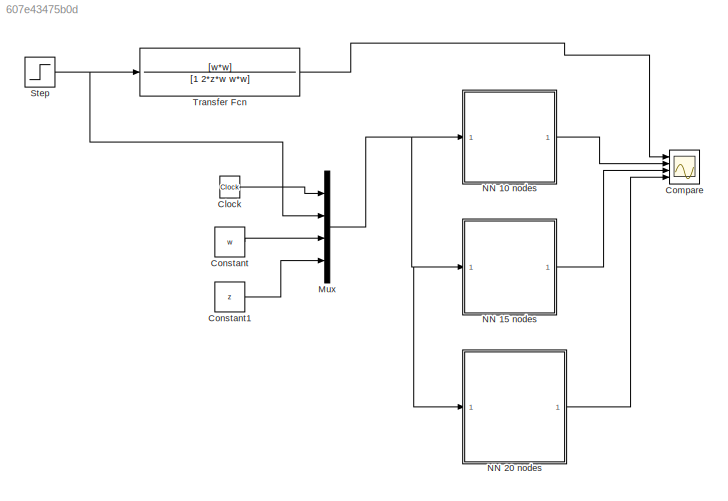
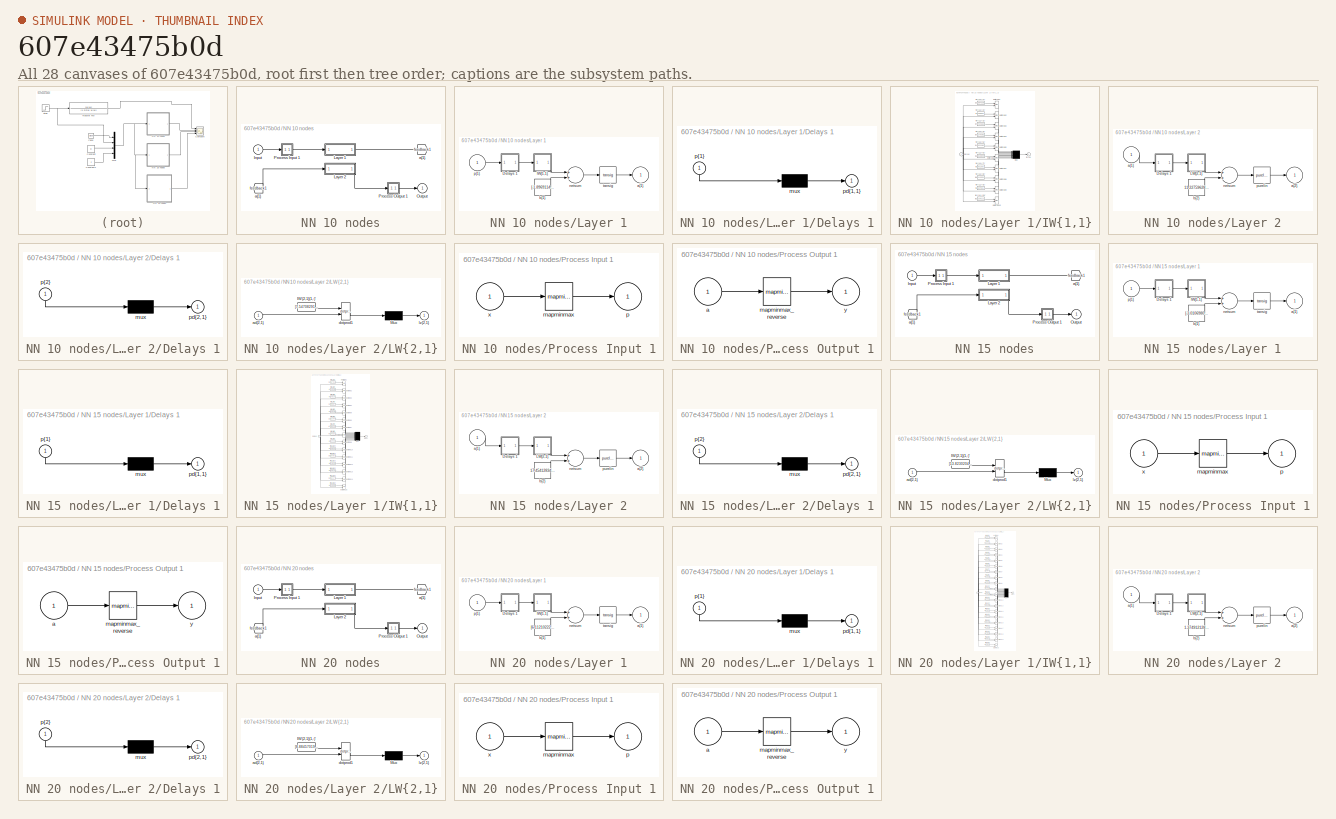
[diagram: thumbnail index - all 28 canvases of the model, root first then tree order]
MODEL slx_607e43475b0d
KIND model
CONFIG AbsTol = auto
CONFIG EnableMultiTasking = off
CONFIG FixedStep = 0.01
CONFIG MaxStep = auto
CONFIG MinStep = auto
CONFIG RelTol = 1e-3
CONFIG SampleTimeConstraint = Unconstrained
CONFIG Solver = FixedStepAuto
CONFIG SolverName = FixedStepAuto
CONFIG StartTime = 0.0
CONFIG StopTime = 10.0
BLOCK [Clock] Clock
BLOCK [Scope] Compare
  NumInputPorts = 4
  Ports = [4]
  ScopeSpecificationString = Simulink.scopes.TimeScopeBlockCfg('CurrentConfiguration', extmgr.ConfigurationSet(extmgr.Configuration('Core','General UI',true),extmgr.Configuration('Core','Source UI',true),extmgr.Configuration('Sources','WiredSimulink',true),extmgr.Configuration('Visuals','Time Domain',true,'SerializedDisplays',{struct('MinYLimReal','-0.19313','MaxYLimReal','1.29629','YLabelReal','','MinYLimMag','0.00000','MaxY...<+1372ch>
BLOCK [Constant] Constant
  Value = w
BLOCK [Constant] Constant1
  Value = z
BLOCK [Mux] Mux
  DisplayOption = bar
  Ports = [4, 1]
BLOCK [SubSystem] NN 10 nodes
  Ports = [1, 1]
  RequestExecContextInheritance = off
  Variant = off
BLOCK [From] NN 10 nodes/ a{1} 
  GotoTag = feedback1
BLOCK [Inport] NN 10 nodes/Input
  IconDisplay = Port number
  PortDimensions = 4
BLOCK [SubSystem] NN 10 nodes/Layer 1
  Ports = [1, 1]
  RequestExecContextInheritance = off
  Variant = off
BLOCK [SubSystem] NN 10 nodes/Layer 1/Delays 1
  Ports = [1, 1]
  RequestExecContextInheritance = off
  Variant = off
BLOCK [Mux] NN 10 nodes/Layer 1/Delays 1/mux
  Inputs = 1
  Ports = [1, 1]
BLOCK [Outport] NN 10 nodes/Layer 1/Delays 1/pd{1,1}
  IconDisplay = Port number
BLOCK [Inport] NN 10 nodes/Layer 1/Delays 1/p{1}
  IconDisplay = Port number
  PortDimensions = 4
BLOCK [SubSystem] NN 10 nodes/Layer 1/IW{1,1}
  Ports = [1, 1]
  RequestExecContextInheritance = off
  Variant = off
BLOCK [Constant] NN 10 nodes/Layer 1/IW{1,1}/IW{1,1}(1,:)'
  Value = [1.9185433832787973;3.3173700128669261;2.4682724581800644;-0.20229762015980254]
BLOCK [Constant] NN 10 nodes/Layer 1/IW{1,1}/IW{1,1}(10,:)'
  Value = [9.3610611228344762;3.1312193322700579;-1.6979437161740925;1.86318595788624]
BLOCK [Constant] NN 10 nodes/Layer 1/IW{1,1}/IW{1,1}(2,:)'
  Value = [-1.7438809418963066;4.2427101116629;-2.4586036192693062;0.046644484786952593]
BLOCK [Constant] NN 10 nodes/Layer 1/IW{1,1}/IW{1,1}(3,:)'
  Value = [3.7341065278569623;3.332555606751709;-0.58328050308780199;0.085751644183435241]
BLOCK [Constant] NN 10 nodes/Layer 1/IW{1,1}/IW{1,1}(4,:)'
  Value = [0.42176382828753656;2.5529666589430926;-12.29804493722396;-0.26766196776032319]
BLOCK [Constant] NN 10 nodes/Layer 1/IW{1,1}/IW{1,1}(5,:)'
  Value = [1.4662338319497805;-7.8036792245139148;-2.5809332820737412;-0.54757653586608357]
BLOCK [Constant] NN 10 nodes/Layer 1/IW{1,1}/IW{1,1}(6,:)'
  Value = [1.5801880067597285;-2.3888841287655458;2.4289911320613817;0.045102788418519578]
BLOCK [Constant] NN 10 nodes/Layer 1/IW{1,1}/IW{1,1}(7,:)'
  Value = [-6.0601393473875778;-1.8712723280086134;-1.2615842720395891;0.06144223575888013]
BLOCK [Constant] NN 10 nodes/Layer 1/IW{1,1}/IW{1,1}(8,:)'
  Value = [9.8611555194809473;3.049663648955744;-1.6407652855003632;1.8019412687678915]
BLOCK [Constant] NN 10 nodes/Layer 1/IW{1,1}/IW{1,1}(9,:)'
  Value = [-6.2167651875167644;3.3431191318571236;-1.2037116092171121;0.00027859896473940535]
BLOCK [Mux] NN 10 nodes/Layer 1/IW{1,1}/Mux
  Inputs = 10
  Ports = [10, 1]
BLOCK [Reference] NN 10 nodes/Layer 1/IW{1,1}/dotprod1  REF=neural/Weight Functions/dotprod
  Ports = [2, 1]
  SourceBlock = neural/Weight Functions/dotprod
  SourceProductBaseCode = NN
  SourceProductName = Neural Network Toolbox
  SourceType = DOTPROD
BLOCK [Reference] NN 10 nodes/Layer 1/IW{1,1}/dotprod10  REF=neural/Weight Functions/dotprod
  Ports = [2, 1]
  SourceBlock = neural/Weight Functions/dotprod
  SourceProductBaseCode = NN
  SourceProductName = Neural Network Toolbox
  SourceType = DOTPROD
BLOCK [Reference] NN 10 nodes/Layer 1/IW{1,1}/dotprod2  REF=neural/Weight Functions/dotprod
  Ports = [2, 1]
  SourceBlock = neural/Weight Functions/dotprod
  SourceProductBaseCode = NN
  SourceProductName = Neural Network Toolbox
  SourceType = DOTPROD
BLOCK [Reference] NN 10 nodes/Layer 1/IW{1,1}/dotprod3  REF=neural/Weight Functions/dotprod
  Ports = [2, 1]
  SourceBlock = neural/Weight Functions/dotprod
  SourceProductBaseCode = NN
  SourceProductName = Neural Network Toolbox
  SourceType = DOTPROD
BLOCK [Reference] NN 10 nodes/Layer 1/IW{1,1}/dotprod4  REF=neural/Weight Functions/dotprod
  Ports = [2, 1]
  SourceBlock = neural/Weight Functions/dotprod
  SourceProductBaseCode = NN
  SourceProductName = Neural Network Toolbox
  SourceType = DOTPROD
BLOCK [Reference] NN 10 nodes/Layer 1/IW{1,1}/dotprod5  REF=neural/Weight Functions/dotprod
  Ports = [2, 1]
  SourceBlock = neural/Weight Functions/dotprod
  SourceProductBaseCode = NN
  SourceProductName = Neural Network Toolbox
  SourceType = DOTPROD
BLOCK [Reference] NN 10 nodes/Layer 1/IW{1,1}/dotprod6  REF=neural/Weight Functions/dotprod
  Ports = [2, 1]
  SourceBlock = neural/Weight Functions/dotprod
  SourceProductBaseCode = NN
  SourceProductName = Neural Network Toolbox
  SourceType = DOTPROD
BLOCK [Reference] NN 10 nodes/Layer 1/IW{1,1}/dotprod7  REF=neural/Weight Functions/dotprod
  Ports = [2, 1]
  SourceBlock = neural/Weight Functions/dotprod
  SourceProductBaseCode = NN
  SourceProductName = Neural Network Toolbox
  SourceType = DOTPROD
BLOCK [Reference] NN 10 nodes/Layer 1/IW{1,1}/dotprod8  REF=neural/Weight Functions/dotprod
  Ports = [2, 1]
  SourceBlock = neural/Weight Functions/dotprod
  SourceProductBaseCode = NN
  SourceProductName = Neural Network Toolbox
  SourceType = DOTPROD
BLOCK [Reference] NN 10 nodes/Layer 1/IW{1,1}/dotprod9  REF=neural/Weight Functions/dotprod
  Ports = [2, 1]
  SourceBlock = neural/Weight Functions/dotprod
  SourceProductBaseCode = NN
  SourceProductName = Neural Network Toolbox
  SourceType = DOTPROD
BLOCK [Outport] NN 10 nodes/Layer 1/IW{1,1}/iz{1,1}
  IconDisplay = Port number
BLOCK [Inport] NN 10 nodes/Layer 1/IW{1,1}/pd{1,1}
  IconDisplay = Port number
  PortDimensions = 4
BLOCK [Outport] NN 10 nodes/Layer 1/a{1}
  IconDisplay = Port number
  InitialOutput = [0;0;0;0;0;0;0;0;0;0]
BLOCK [Constant] NN 10 nodes/Layer 1/b{1}
  Value = [-1.8969114518142287;-5.5347021458910861;-0.23725296557812867;-5.6693746096259385;1.7795127847458978;3.6072536956119969;-0.86535525560730853;6.441479356336445;-6.0313773870575424;6.0504960039427829]
BLOCK [Sum] NN 10 nodes/Layer 1/netsum
  Inputs = 2
  Ports = [2, 1]
BLOCK [Inport] NN 10 nodes/Layer 1/p{1}
  IconDisplay = Port number
  PortDimensions = 4
BLOCK [Reference] NN 10 nodes/Layer 1/tansig  REF=neural/Transfer Functions/tansig
  Ports = [1, 1]
  SourceBlock = neural/Transfer Functions/tansig
  SourceProductBaseCode = NN
  SourceProductName = Neural Network Toolbox
  SourceType = TANSIG
BLOCK [SubSystem] NN 10 nodes/Layer 2
  Ports = [1, 1]
  RequestExecContextInheritance = off
  Variant = off
BLOCK [SubSystem] NN 10 nodes/Layer 2/Delays 1
  Ports = [1, 1]
  RequestExecContextInheritance = off
  Variant = off
BLOCK [Mux] NN 10 nodes/Layer 2/Delays 1/mux
  Inputs = 1
  Ports = [1, 1]
BLOCK [Outport] NN 10 nodes/Layer 2/Delays 1/pd{2,1}
  IconDisplay = Port number
BLOCK [Inport] NN 10 nodes/Layer 2/Delays 1/p{2}
  IconDisplay = Port number
  PortDimensions = 10
BLOCK [SubSystem] NN 10 nodes/Layer 2/LW{2,1}
  Ports = [1, 1]
  RequestExecContextInheritance = off
  Variant = off
BLOCK [Constant] NN 10 nodes/Layer 2/LW{2,1}/IW{2,1}(1,:)'
  Value = [7.5470829198606193;17.97931140673456;0.83778853620659033;0.12308884845091767;12.427538647284898;10.821060689712372;-4.5890978940173976;4.4868871934669592;4.2881423585224026;-4.3726674009690711]
BLOCK [Mux] NN 10 nodes/Layer 2/LW{2,1}/Mux
  Inputs = 1
  Ports = [1, 1]
BLOCK [Inport] NN 10 nodes/Layer 2/LW{2,1}/ad{2,1}
  IconDisplay = Port number
  PortDimensions = 10
BLOCK [Reference] NN 10 nodes/Layer 2/LW{2,1}/dotprod1  REF=neural/Weight Functions/dotprod
  Ports = [2, 1]
  SourceBlock = neural/Weight Functions/dotprod
  SourceProductBaseCode = NN
  SourceProductName = Neural Network Toolbox
  SourceType = DOTPROD
BLOCK [Outport] NN 10 nodes/Layer 2/LW{2,1}/lz{2,1}
  IconDisplay = Port number
BLOCK [Inport] NN 10 nodes/Layer 2/a{1} 
  IconDisplay = Port number
  PortDimensions = 10
BLOCK [Outport] NN 10 nodes/Layer 2/a{2}
  IconDisplay = Port number
  InitialOutput = 0
BLOCK [Constant] NN 10 nodes/Layer 2/b{2}
  Value = 11.227596280265539
BLOCK [Sum] NN 10 nodes/Layer 2/netsum
  Inputs = 2
  Ports = [2, 1]
BLOCK [Reference] NN 10 nodes/Layer 2/purelin  REF=neural/Transfer Functions/purelin
  Ports = [1, 1]
  SourceBlock = neural/Transfer Functions/purelin
  SourceProductBaseCode = NN
  SourceProductName = Neural Network Toolbox
  SourceType = PURELIN
BLOCK [Outport] NN 10 nodes/Output
  IconDisplay = Port number
  InitialOutput = 0
BLOCK [SubSystem] NN 10 nodes/Process Input 1
  Ports = [1, 1]
  RequestExecContextInheritance = off
  Variant = off
BLOCK [Reference] NN 10 nodes/Process Input 1/mapminmax  REF=neural/Processing Functions/mapminmax
  Ports = [1, 1]
  SourceBlock = neural/Processing Functions/mapminmax
  SourceProductBaseCode = NN
  SourceProductName = Neural Network Toolbox
  SourceType = MAPMINMAX Preprocess
BLOCK [Outport] NN 10 nodes/Process Input 1/p
  IconDisplay = Port number
  PortDimensions = 4
BLOCK [Inport] NN 10 nodes/Process Input 1/x
  IconDisplay = Port number
  PortDimensions = 4
BLOCK [SubSystem] NN 10 nodes/Process Output 1
  Ports = [1, 1]
  RequestExecContextInheritance = off
  Variant = off
BLOCK [Inport] NN 10 nodes/Process Output 1/a
  IconDisplay = Port number
  PortDimensions = 1
BLOCK [Reference] NN 10 nodes/Process Output 1/mapminmax_reverse  REF=neural/Processing Functions/mapminmax_reverse
  Ports = [1, 1]
  SourceBlock = neural/Processing Functions/mapminmax_reverse
  SourceProductBaseCode = NN
  SourceProductName = Neural Network Toolbox
  SourceType = MAPMINMAX Reverse Process
BLOCK [Outport] NN 10 nodes/Process Output 1/y
  IconDisplay = Port number
  PortDimensions = 1
BLOCK [Goto] NN 10 nodes/a{1}
  GotoTag = feedback1
BLOCK [SubSystem] NN 15 nodes
  Ports = [1, 1]
  RequestExecContextInheritance = off
  Variant = off
BLOCK [From] NN 15 nodes/ a{1} 
  GotoTag = feedback1
BLOCK [Inport] NN 15 nodes/Input
  IconDisplay = Port number
  PortDimensions = 4
BLOCK [SubSystem] NN 15 nodes/Layer 1
  Ports = [1, 1]
  RequestExecContextInheritance = off
  Variant = off
BLOCK [SubSystem] NN 15 nodes/Layer 1/Delays 1
  Ports = [1, 1]
  RequestExecContextInheritance = off
  Variant = off
BLOCK [Mux] NN 15 nodes/Layer 1/Delays 1/mux
  Inputs = 1
  Ports = [1, 1]
BLOCK [Outport] NN 15 nodes/Layer 1/Delays 1/pd{1,1}
  IconDisplay = Port number
BLOCK [Inport] NN 15 nodes/Layer 1/Delays 1/p{1}
  IconDisplay = Port number
  PortDimensions = 4
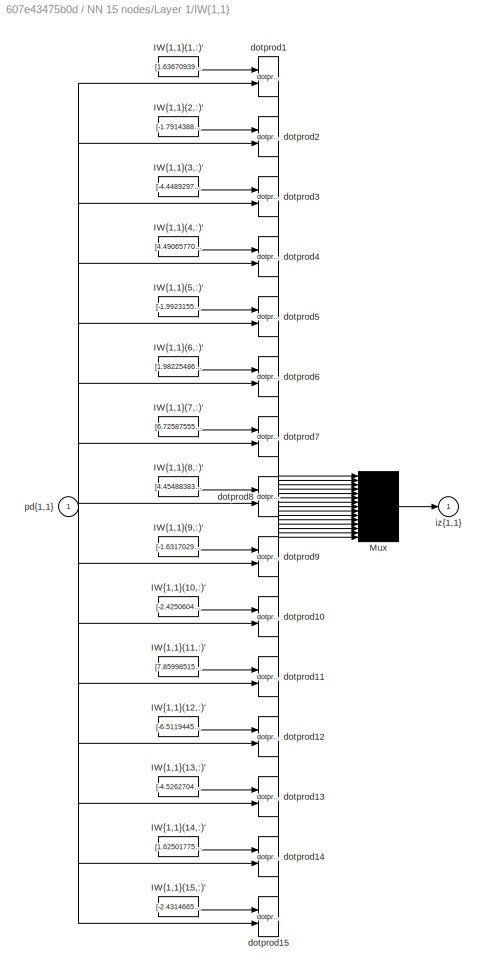
BLOCK [SubSystem] NN 15 nodes/Layer 1/IW{1,1}
  Ports = [1, 1]
  RequestExecContextInheritance = off
  Variant = off
BLOCK [Constant] NN 15 nodes/Layer 1/IW{1,1}/IW{1,1}(1,:)'
  Value = [1.6367093967858795;4.7671244247278839;3.6694473521932967;-0.090835932073285719]
BLOCK [Constant] NN 15 nodes/Layer 1/IW{1,1}/IW{1,1}(10,:)'
  Value = [-2.4250604188863543;-3.2322836668932147;-2.2178351826044875;-0.35950824960210315]
BLOCK [Constant] NN 15 nodes/Layer 1/IW{1,1}/IW{1,1}(11,:)'
  Value = [7.859985151831471;4.075395387352267;0.20632427552164345;0.1333083015870295]
BLOCK [Constant] NN 15 nodes/Layer 1/IW{1,1}/IW{1,1}(12,:)'
  Value = [-6.5119445883315485;-3.3250628916996141;0.18997564626024152;-0.16703798102529169]
BLOCK [Constant] NN 15 nodes/Layer 1/IW{1,1}/IW{1,1}(13,:)'
  Value = [-4.5262704890445136;-3.4488161706403249;0.61016538680418586;-0.19865226564173494]
BLOCK [Constant] NN 15 nodes/Layer 1/IW{1,1}/IW{1,1}(14,:)'
  Value = [1.6250177546797591;-4.5160854403117421;3.5206146538859393;-0.18942310213385169]
BLOCK [Constant] NN 15 nodes/Layer 1/IW{1,1}/IW{1,1}(15,:)'
  Value = [-2.431466583005522;-3.2894868442488807;-2.2432242812651326;-0.32170777674257961]
BLOCK [Constant] NN 15 nodes/Layer 1/IW{1,1}/IW{1,1}(2,:)'
  Value = [-1.7914388164855128;2.3269927124328493;2.6395293624925493;-0.21594884850701174]
BLOCK [Constant] NN 15 nodes/Layer 1/IW{1,1}/IW{1,1}(3,:)'
  Value = [-4.4489297840655517;-1.5240659164515193;-1.2221749395630155;-0.080297837161326796]
BLOCK [Constant] NN 15 nodes/Layer 1/IW{1,1}/IW{1,1}(4,:)'
  Value = [4.4906577069397402;2.085707443106906;1.356141370290719;-0.084714941640286007]
BLOCK [Constant] NN 15 nodes/Layer 1/IW{1,1}/IW{1,1}(5,:)'
  Value = [-1.9923155598440656;-2.9939743639489698;0.82477655267443395;-0.11315537059465612]
BLOCK [Constant] NN 15 nodes/Layer 1/IW{1,1}/IW{1,1}(6,:)'
  Value = [1.9822548652313754;3.6455433662840107;-0.92565706213667709;0.14114528678395794]
BLOCK [Constant] NN 15 nodes/Layer 1/IW{1,1}/IW{1,1}(7,:)'
  Value = [6.7258755529429619;2.0652168344548136;5.3349932528868287;-0.62168135458888873]
BLOCK [Constant] NN 15 nodes/Layer 1/IW{1,1}/IW{1,1}(8,:)'
  Value = [4.4548838343382275;1.7130216933609064;1.2841274006452714;0.0029059097410909919]
BLOCK [Constant] NN 15 nodes/Layer 1/IW{1,1}/IW{1,1}(9,:)'
  Value = [-1.6317029364170346;-4.3770680490881961;-3.3632414160342043;0.28821957456768521]
BLOCK [Mux] NN 15 nodes/Layer 1/IW{1,1}/Mux
  Inputs = 15
  Ports = [15, 1]
BLOCK [Reference] NN 15 nodes/Layer 1/IW{1,1}/dotprod1  REF=neural/Weight Functions/dotprod
  Ports = [2, 1]
  SourceBlock = neural/Weight Functions/dotprod
  SourceProductBaseCode = NN
  SourceProductName = Neural Network Toolbox
  SourceType = DOTPROD
BLOCK [Reference] NN 15 nodes/Layer 1/IW{1,1}/dotprod10  REF=neural/Weight Functions/dotprod
  Ports = [2, 1]
  SourceBlock = neural/Weight Functions/dotprod
  SourceProductBaseCode = NN
  SourceProductName = Neural Network Toolbox
  SourceType = DOTPROD
BLOCK [Reference] NN 15 nodes/Layer 1/IW{1,1}/dotprod11  REF=neural/Weight Functions/dotprod
  Ports = [2, 1]
  SourceBlock = neural/Weight Functions/dotprod
  SourceProductBaseCode = NN
  SourceProductName = Neural Network Toolbox
  SourceType = DOTPROD
BLOCK [Reference] NN 15 nodes/Layer 1/IW{1,1}/dotprod12  REF=neural/Weight Functions/dotprod
  Ports = [2, 1]
  SourceBlock = neural/Weight Functions/dotprod
  SourceProductBaseCode = NN
  SourceProductName = Neural Network Toolbox
  SourceType = DOTPROD
BLOCK [Reference] NN 15 nodes/Layer 1/IW{1,1}/dotprod13  REF=neural/Weight Functions/dotprod
  Ports = [2, 1]
  SourceBlock = neural/Weight Functions/dotprod
  SourceProductBaseCode = NN
  SourceProductName = Neural Network Toolbox
  SourceType = DOTPROD
BLOCK [Reference] NN 15 nodes/Layer 1/IW{1,1}/dotprod14  REF=neural/Weight Functions/dotprod
  Ports = [2, 1]
  SourceBlock = neural/Weight Functions/dotprod
  SourceProductBaseCode = NN
  SourceProductName = Neural Network Toolbox
  SourceType = DOTPROD
BLOCK [Reference] NN 15 nodes/Layer 1/IW{1,1}/dotprod15  REF=neural/Weight Functions/dotprod
  Ports = [2, 1]
  SourceBlock = neural/Weight Functions/dotprod
  SourceProductBaseCode = NN
  SourceProductName = Neural Network Toolbox
  SourceType = DOTPROD
BLOCK [Reference] NN 15 nodes/Layer 1/IW{1,1}/dotprod2  REF=neural/Weight Functions/dotprod
  Ports = [2, 1]
  SourceBlock = neural/Weight Functions/dotprod
  SourceProductBaseCode = NN
  SourceProductName = Neural Network Toolbox
  SourceType = DOTPROD
BLOCK [Reference] NN 15 nodes/Layer 1/IW{1,1}/dotprod3  REF=neural/Weight Functions/dotprod
  Ports = [2, 1]
  SourceBlock = neural/Weight Functions/dotprod
  SourceProductBaseCode = NN
  SourceProductName = Neural Network Toolbox
  SourceType = DOTPROD
BLOCK [Reference] NN 15 nodes/Layer 1/IW{1,1}/dotprod4  REF=neural/Weight Functions/dotprod
  Ports = [2, 1]
  SourceBlock = neural/Weight Functions/dotprod
  SourceProductBaseCode = NN
  SourceProductName = Neural Network Toolbox
  SourceType = DOTPROD
BLOCK [Reference] NN 15 nodes/Layer 1/IW{1,1}/dotprod5  REF=neural/Weight Functions/dotprod
  Ports = [2, 1]
  SourceBlock = neural/Weight Functions/dotprod
  SourceProductBaseCode = NN
  SourceProductName = Neural Network Toolbox
  SourceType = DOTPROD
BLOCK [Reference] NN 15 nodes/Layer 1/IW{1,1}/dotprod6  REF=neural/Weight Functions/dotprod
  Ports = [2, 1]
  SourceBlock = neural/Weight Functions/dotprod
  SourceProductBaseCode = NN
  SourceProductName = Neural Network Toolbox
  SourceType = DOTPROD
BLOCK [Reference] NN 15 nodes/Layer 1/IW{1,1}/dotprod7  REF=neural/Weight Functions/dotprod
  Ports = [2, 1]
  SourceBlock = neural/Weight Functions/dotprod
  SourceProductBaseCode = NN
  SourceProductName = Neural Network Toolbox
  SourceType = DOTPROD
BLOCK [Reference] NN 15 nodes/Layer 1/IW{1,1}/dotprod8  REF=neural/Weight Functions/dotprod
  Ports = [2, 1]
  SourceBlock = neural/Weight Functions/dotprod
  SourceProductBaseCode = NN
  SourceProductName = Neural Network Toolbox
  SourceType = DOTPROD
BLOCK [Reference] NN 15 nodes/Layer 1/IW{1,1}/dotprod9  REF=neural/Weight Functions/dotprod
  Ports = [2, 1]
  SourceBlock = neural/Weight Functions/dotprod
  SourceProductBaseCode = NN
  SourceProductName = Neural Network Toolbox
  SourceType = DOTPROD
BLOCK [Outport] NN 15 nodes/Layer 1/IW{1,1}/iz{1,1}
  IconDisplay = Port number
BLOCK [Inport] NN 15 nodes/Layer 1/IW{1,1}/pd{1,1}
  IconDisplay = Port number
  PortDimensions = 4
BLOCK [Outport] NN 15 nodes/Layer 1/a{1}
  IconDisplay = Port number
  InitialOutput = [0;0;0;0;0;0;0;0;0;0;0;0;0;0;0]
BLOCK [Constant] NN 15 nodes/Layer 1/b{1}
  Value = [-3.010698014140412;-7.0109339342903816;0.36994039546875945;-0.79724423515219767;0.562245675767719;-0.52839559590155372;-0.84980854431881259;-0.49752484818285092;2.6561137504187573;1.0043493459965021;3.6455499438625227;-3.0538087857608325;-1.4419074036347683;6.2581803163232843;1.0150035255896928]
BLOCK [Sum] NN 15 nodes/Layer 1/netsum
  Inputs = 2
  Ports = [2, 1]
BLOCK [Inport] NN 15 nodes/Layer 1/p{1}
  IconDisplay = Port number
  PortDimensions = 4
BLOCK [Reference] NN 15 nodes/Layer 1/tansig  REF=neural/Transfer Functions/tansig
  Ports = [1, 1]
  SourceBlock = neural/Transfer Functions/tansig
  SourceProductBaseCode = NN
  SourceProductName = Neural Network Toolbox
  SourceType = TANSIG
BLOCK [SubSystem] NN 15 nodes/Layer 2
  Ports = [1, 1]
  RequestExecContextInheritance = off
  Variant = off
BLOCK [SubSystem] NN 15 nodes/Layer 2/Delays 1
  Ports = [1, 1]
  RequestExecContextInheritance = off
  Variant = off
BLOCK [Mux] NN 15 nodes/Layer 2/Delays 1/mux
  Inputs = 1
  Ports = [1, 1]
BLOCK [Outport] NN 15 nodes/Layer 2/Delays 1/pd{2,1}
  IconDisplay = Port number
BLOCK [Inport] NN 15 nodes/Layer 2/Delays 1/p{2}
  IconDisplay = Port number
  PortDimensions = 15
BLOCK [SubSystem] NN 15 nodes/Layer 2/LW{2,1}
  Ports = [1, 1]
  RequestExecContextInheritance = off
  Variant = off
BLOCK [Constant] NN 15 nodes/Layer 2/LW{2,1}/IW{2,1}(1,:)'
  Value = [13.823020481010992;-10.089290858030349;-26.436889815022628;23.53342803211978;-19.643827099769759;-76.666545760361586;-0.1045862064924286;-50.150470990165424;-14.271793111223889;11.023354701805756;21.685732395338089;46.762131884209907;-54.359756890029303;-27.886769294935775;-11.609252551444957]
BLOCK [Mux] NN 15 nodes/Layer 2/LW{2,1}/Mux
  Inputs = 1
  Ports = [1, 1]
BLOCK [Inport] NN 15 nodes/Layer 2/LW{2,1}/ad{2,1}
  IconDisplay = Port number
  PortDimensions = 15
BLOCK [Reference] NN 15 nodes/Layer 2/LW{2,1}/dotprod1  REF=neural/Weight Functions/dotprod
  Ports = [2, 1]
  SourceBlock = neural/Weight Functions/dotprod
  SourceProductBaseCode = NN
  SourceProductName = Neural Network Toolbox
  SourceType = DOTPROD
BLOCK [Outport] NN 15 nodes/Layer 2/LW{2,1}/lz{2,1}
  IconDisplay = Port number
BLOCK [Inport] NN 15 nodes/Layer 2/a{1} 
  IconDisplay = Port number
  PortDimensions = 15
BLOCK [Outport] NN 15 nodes/Layer 2/a{2}
  IconDisplay = Port number
  InitialOutput = 0
BLOCK [Constant] NN 15 nodes/Layer 2/b{2}
  Value = 17.454128347804694
BLOCK [Sum] NN 15 nodes/Layer 2/netsum
  Inputs = 2
  Ports = [2, 1]
BLOCK [Reference] NN 15 nodes/Layer 2/purelin  REF=neural/Transfer Functions/purelin
  Ports = [1, 1]
  SourceBlock = neural/Transfer Functions/purelin
  SourceProductBaseCode = NN
  SourceProductName = Neural Network Toolbox
  SourceType = PURELIN
BLOCK [Outport] NN 15 nodes/Output
  IconDisplay = Port number
  InitialOutput = 0
BLOCK [SubSystem] NN 15 nodes/Process Input 1
  Ports = [1, 1]
  RequestExecContextInheritance = off
  Variant = off
BLOCK [Reference] NN 15 nodes/Process Input 1/mapminmax  REF=neural/Processing Functions/mapminmax
  Ports = [1, 1]
  SourceBlock = neural/Processing Functions/mapminmax
  SourceProductBaseCode = NN
  SourceProductName = Neural Network Toolbox
  SourceType = MAPMINMAX Preprocess
BLOCK [Outport] NN 15 nodes/Process Input 1/p
  IconDisplay = Port number
  PortDimensions = 4
BLOCK [Inport] NN 15 nodes/Process Input 1/x
  IconDisplay = Port number
  PortDimensions = 4
BLOCK [SubSystem] NN 15 nodes/Process Output 1
  Ports = [1, 1]
  RequestExecContextInheritance = off
  Variant = off
BLOCK [Inport] NN 15 nodes/Process Output 1/a
  IconDisplay = Port number
  PortDimensions = 1
BLOCK [Reference] NN 15 nodes/Process Output 1/mapminmax_reverse  REF=neural/Processing Functions/mapminmax_reverse
  Ports = [1, 1]
  SourceBlock = neural/Processing Functions/mapminmax_reverse
  SourceProductBaseCode = NN
  SourceProductName = Neural Network Toolbox
  SourceType = MAPMINMAX Reverse Process
BLOCK [Outport] NN 15 nodes/Process Output 1/y
  IconDisplay = Port number
  PortDimensions = 1
BLOCK [Goto] NN 15 nodes/a{1}
  GotoTag = feedback1
BLOCK [SubSystem] NN 20 nodes
  Ports = [1, 1]
  RequestExecContextInheritance = off
  Variant = off
BLOCK [From] NN 20 nodes/ a{1} 
  GotoTag = feedback1
BLOCK [Inport] NN 20 nodes/Input
  IconDisplay = Port number
  PortDimensions = 4
BLOCK [SubSystem] NN 20 nodes/Layer 1
  Ports = [1, 1]
  RequestExecContextInheritance = off
  Variant = off
BLOCK [SubSystem] NN 20 nodes/Layer 1/Delays 1
  Ports = [1, 1]
  RequestExecContextInheritance = off
  Variant = off
BLOCK [Mux] NN 20 nodes/Layer 1/Delays 1/mux
  Inputs = 1
  Ports = [1, 1]
BLOCK [Outport] NN 20 nodes/Layer 1/Delays 1/pd{1,1}
  IconDisplay = Port number
BLOCK [Inport] NN 20 nodes/Layer 1/Delays 1/p{1}
  IconDisplay = Port number
  PortDimensions = 4
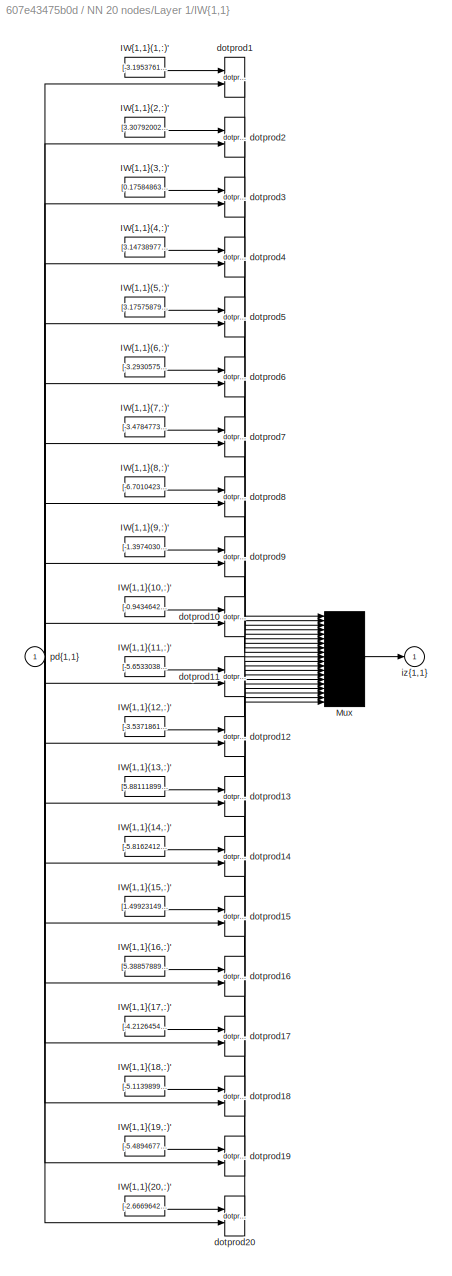
BLOCK [SubSystem] NN 20 nodes/Layer 1/IW{1,1}
  Ports = [1, 1]
  RequestExecContextInheritance = off
  Variant = off
BLOCK [Constant] NN 20 nodes/Layer 1/IW{1,1}/IW{1,1}(1,:)'
  Value = [-3.1953761804372469;-0.47930331129062792;4.1299611235819604;0.08308942034562955]
BLOCK [Constant] NN 20 nodes/Layer 1/IW{1,1}/IW{1,1}(10,:)'
  Value = [-0.94346423663857859;0.33595388053152425;-1.6552241619329;0.24722530021668526]
BLOCK [Constant] NN 20 nodes/Layer 1/IW{1,1}/IW{1,1}(11,:)'
  Value = [-5.6533038951557888;-0.8675251950836731;-0.748732711892939;-0.063407819991171427]
BLOCK [Constant] NN 20 nodes/Layer 1/IW{1,1}/IW{1,1}(12,:)'
  Value = [-3.5371861559585454;1.749751344229546;-1.3619280407822945;0.24540412052613239]
BLOCK [Constant] NN 20 nodes/Layer 1/IW{1,1}/IW{1,1}(13,:)'
  Value = [5.8811189998503046;-2.1131575317312641;1.1971806968945451;-0.21011050994235972]
BLOCK [Constant] NN 20 nodes/Layer 1/IW{1,1}/IW{1,1}(14,:)'
  Value = [-5.8162412490045075;1.4328560828139068;-1.3076023686200005;0.31298120475145874]
BLOCK [Constant] NN 20 nodes/Layer 1/IW{1,1}/IW{1,1}(15,:)'
  Value = [1.4992314991632074;1.2642487174420602;1.1785771367769491;-0.46766935390660708]
BLOCK [Constant] NN 20 nodes/Layer 1/IW{1,1}/IW{1,1}(16,:)'
  Value = [5.3885788907365546;2.6284946921510666;0.18636712945011072;0.24310760312785518]
BLOCK [Constant] NN 20 nodes/Layer 1/IW{1,1}/IW{1,1}(17,:)'
  Value = [-4.2126454082431719;1.2498966209178834;-0.12479445200001622;-0.1644274094816999]
BLOCK [Constant] NN 20 nodes/Layer 1/IW{1,1}/IW{1,1}(18,:)'
  Value = [-5.1139899470610146;0.91194932453065125;-0.30760227800419826;-0.21820299020965925]
BLOCK [Constant] NN 20 nodes/Layer 1/IW{1,1}/IW{1,1}(19,:)'
  Value = [-5.4894677698311103;4.5511051741018589;-0.65997416309656776;-0.098680238148625449]
BLOCK [Constant] NN 20 nodes/Layer 1/IW{1,1}/IW{1,1}(2,:)'
  Value = [3.3079200271789464;0.49156286870378463;1.5017218926455282;0.1619867463853919]
BLOCK [Constant] NN 20 nodes/Layer 1/IW{1,1}/IW{1,1}(20,:)'
  Value = [-2.6669642877660733;0.79411225923353856;-0.53999129223442233;-0.25825059414425661]
BLOCK [Constant] NN 20 nodes/Layer 1/IW{1,1}/IW{1,1}(3,:)'
  Value = [0.17584863690074332;0.25255432558285668;-1.6279484859444746;-0.7008776702777908]
BLOCK [Constant] NN 20 nodes/Layer 1/IW{1,1}/IW{1,1}(4,:)'
  Value = [3.1473897789667742;-0.57398658037831651;-5.3443087142120316;-1.1200680583214881]
BLOCK [Constant] NN 20 nodes/Layer 1/IW{1,1}/IW{1,1}(5,:)'
  Value = [3.1757587934493379;0.21382858262711985;1.3693830883471347;-0.10022276006851799]
BLOCK [Constant] NN 20 nodes/Layer 1/IW{1,1}/IW{1,1}(6,:)'
  Value = [-3.2930575364632424;1.0238001192809745;4.3754574376564506;0.13756569733629581]
BLOCK [Constant] NN 20 nodes/Layer 1/IW{1,1}/IW{1,1}(7,:)'
  Value = [-3.4784773309149033;-1.8707827541779012;-1.5281231305147616;-0.27137780358038438]
BLOCK [Constant] NN 20 nodes/Layer 1/IW{1,1}/IW{1,1}(8,:)'
  Value = [-6.7010423634585781;-2.0964306737872764;-1.3313074034609198;0.27561867664978962]
BLOCK [Constant] NN 20 nodes/Layer 1/IW{1,1}/IW{1,1}(9,:)'
  Value = [-1.3974030751867241;-1.2343719617725413;-1.2070954246217658;0.4203659260912091]
BLOCK [Mux] NN 20 nodes/Layer 1/IW{1,1}/Mux
  Inputs = 20
  Ports = [20, 1]
BLOCK [Reference] NN 20 nodes/Layer 1/IW{1,1}/dotprod1  REF=neural/Weight Functions/dotprod
  Ports = [2, 1]
  SourceBlock = neural/Weight Functions/dotprod
  SourceProductBaseCode = NN
  SourceProductName = Neural Network Toolbox
  SourceType = DOTPROD
BLOCK [Reference] NN 20 nodes/Layer 1/IW{1,1}/dotprod10  REF=neural/Weight Functions/dotprod
  Ports = [2, 1]
  SourceBlock = neural/Weight Functions/dotprod
  SourceProductBaseCode = NN
  SourceProductName = Neural Network Toolbox
  SourceType = DOTPROD
BLOCK [Reference] NN 20 nodes/Layer 1/IW{1,1}/dotprod11  REF=neural/Weight Functions/dotprod
  Ports = [2, 1]
  SourceBlock = neural/Weight Functions/dotprod
  SourceProductBaseCode = NN
  SourceProductName = Neural Network Toolbox
  SourceType = DOTPROD
BLOCK [Reference] NN 20 nodes/Layer 1/IW{1,1}/dotprod12  REF=neural/Weight Functions/dotprod
  Ports = [2, 1]
  SourceBlock = neural/Weight Functions/dotprod
  SourceProductBaseCode = NN
  SourceProductName = Neural Network Toolbox
  SourceType = DOTPROD
BLOCK [Reference] NN 20 nodes/Layer 1/IW{1,1}/dotprod13  REF=neural/Weight Functions/dotprod
  Ports = [2, 1]
  SourceBlock = neural/Weight Functions/dotprod
  SourceProductBaseCode = NN
  SourceProductName = Neural Network Toolbox
  SourceType = DOTPROD
BLOCK [Reference] NN 20 nodes/Layer 1/IW{1,1}/dotprod14  REF=neural/Weight Functions/dotprod
  Ports = [2, 1]
  SourceBlock = neural/Weight Functions/dotprod
  SourceProductBaseCode = NN
  SourceProductName = Neural Network Toolbox
  SourceType = DOTPROD
BLOCK [Reference] NN 20 nodes/Layer 1/IW{1,1}/dotprod15  REF=neural/Weight Functions/dotprod
  Ports = [2, 1]
  SourceBlock = neural/Weight Functions/dotprod
  SourceProductBaseCode = NN
  SourceProductName = Neural Network Toolbox
  SourceType = DOTPROD
BLOCK [Reference] NN 20 nodes/Layer 1/IW{1,1}/dotprod16  REF=neural/Weight Functions/dotprod
  Ports = [2, 1]
  SourceBlock = neural/Weight Functions/dotprod
  SourceProductBaseCode = NN
  SourceProductName = Neural Network Toolbox
  SourceType = DOTPROD
BLOCK [Reference] NN 20 nodes/Layer 1/IW{1,1}/dotprod17  REF=neural/Weight Functions/dotprod
  Ports = [2, 1]
  SourceBlock = neural/Weight Functions/dotprod
  SourceProductBaseCode = NN
  SourceProductName = Neural Network Toolbox
  SourceType = DOTPROD
BLOCK [Reference] NN 20 nodes/Layer 1/IW{1,1}/dotprod18  REF=neural/Weight Functions/dotprod
  Ports = [2, 1]
  SourceBlock = neural/Weight Functions/dotprod
  SourceProductBaseCode = NN
  SourceProductName = Neural Network Toolbox
  SourceType = DOTPROD
BLOCK [Reference] NN 20 nodes/Layer 1/IW{1,1}/dotprod19  REF=neural/Weight Functions/dotprod
  Ports = [2, 1]
  SourceBlock = neural/Weight Functions/dotprod
  SourceProductBaseCode = NN
  SourceProductName = Neural Network Toolbox
  SourceType = DOTPROD
BLOCK [Reference] NN 20 nodes/Layer 1/IW{1,1}/dotprod2  REF=neural/Weight Functions/dotprod
  Ports = [2, 1]
  SourceBlock = neural/Weight Functions/dotprod
  SourceProductBaseCode = NN
  SourceProductName = Neural Network Toolbox
  SourceType = DOTPROD
BLOCK [Reference] NN 20 nodes/Layer 1/IW{1,1}/dotprod20  REF=neural/Weight Functions/dotprod
  Ports = [2, 1]
  SourceBlock = neural/Weight Functions/dotprod
  SourceProductBaseCode = NN
  SourceProductName = Neural Network Toolbox
  SourceType = DOTPROD
BLOCK [Reference] NN 20 nodes/Layer 1/IW{1,1}/dotprod3  REF=neural/Weight Functions/dotprod
  Ports = [2, 1]
  SourceBlock = neural/Weight Functions/dotprod
  SourceProductBaseCode = NN
  SourceProductName = Neural Network Toolbox
  SourceType = DOTPROD
BLOCK [Reference] NN 20 nodes/Layer 1/IW{1,1}/dotprod4  REF=neural/Weight Functions/dotprod
  Ports = [2, 1]
  SourceBlock = neural/Weight Functions/dotprod
  SourceProductBaseCode = NN
  SourceProductName = Neural Network Toolbox
  SourceType = DOTPROD
BLOCK [Reference] NN 20 nodes/Layer 1/IW{1,1}/dotprod5  REF=neural/Weight Functions/dotprod
  Ports = [2, 1]
  SourceBlock = neural/Weight Functions/dotprod
  SourceProductBaseCode = NN
  SourceProductName = Neural Network Toolbox
  SourceType = DOTPROD
BLOCK [Reference] NN 20 nodes/Layer 1/IW{1,1}/dotprod6  REF=neural/Weight Functions/dotprod
  Ports = [2, 1]
  SourceBlock = neural/Weight Functions/dotprod
  SourceProductBaseCode = NN
  SourceProductName = Neural Network Toolbox
  SourceType = DOTPROD
BLOCK [Reference] NN 20 nodes/Layer 1/IW{1,1}/dotprod7  REF=neural/Weight Functions/dotprod
  Ports = [2, 1]
  SourceBlock = neural/Weight Functions/dotprod
  SourceProductBaseCode = NN
  SourceProductName = Neural Network Toolbox
  SourceType = DOTPROD
BLOCK [Reference] NN 20 nodes/Layer 1/IW{1,1}/dotprod8  REF=neural/Weight Functions/dotprod
  Ports = [2, 1]
  SourceBlock = neural/Weight Functions/dotprod
  SourceProductBaseCode = NN
  SourceProductName = Neural Network Toolbox
  SourceType = DOTPROD
BLOCK [Reference] NN 20 nodes/Layer 1/IW{1,1}/dotprod9  REF=neural/Weight Functions/dotprod
  Ports = [2, 1]
  SourceBlock = neural/Weight Functions/dotprod
  SourceProductBaseCode = NN
  SourceProductName = Neural Network Toolbox
  SourceType = DOTPROD
BLOCK [Outport] NN 20 nodes/Layer 1/IW{1,1}/iz{1,1}
  IconDisplay = Port number
BLOCK [Inport] NN 20 nodes/Layer 1/IW{1,1}/pd{1,1}
  IconDisplay = Port number
  PortDimensions = 4
BLOCK [Outport] NN 20 nodes/Layer 1/a{1}
  IconDisplay = Port number
  InitialOutput = [0;0;0;0;0;0;0;0;0;0;0;0;0;0;0;0;0;0;0;0]
BLOCK [Constant] NN 20 nodes/Layer 1/b{1}
  Value = [6.1121022274672132;-0.55612219925222595;-3.2106114335919722;-5.4311590232168507;0.041808619525514304;4.8245243632551134;2.0521982713203628;-7.4451755517369165;-0.015543454018881197;-1.2756561691842387;-2.0408846692597788;-2.1757633726048504;3.7774540145652544;-3.242397195802837;0.061196423319205287;0.89429594318859573;-4.2214174415850998;-5.1310769356119712;-7.3255974293210233;-3.112143700176039]
BLOCK [Sum] NN 20 nodes/Layer 1/netsum
  Inputs = 2
  Ports = [2, 1]
BLOCK [Inport] NN 20 nodes/Layer 1/p{1}
  IconDisplay = Port number
  PortDimensions = 4
BLOCK [Reference] NN 20 nodes/Layer 1/tansig  REF=neural/Transfer Functions/tansig
  Ports = [1, 1]
  SourceBlock = neural/Transfer Functions/tansig
  SourceProductBaseCode = NN
  SourceProductName = Neural Network Toolbox
  SourceType = TANSIG
BLOCK [SubSystem] NN 20 nodes/Layer 2
  Ports = [1, 1]
  RequestExecContextInheritance = off
  Variant = off
BLOCK [SubSystem] NN 20 nodes/Layer 2/Delays 1
  Ports = [1, 1]
  RequestExecContextInheritance = off
  Variant = off
BLOCK [Mux] NN 20 nodes/Layer 2/Delays 1/mux
  Inputs = 1
  Ports = [1, 1]
BLOCK [Outport] NN 20 nodes/Layer 2/Delays 1/pd{2,1}
  IconDisplay = Port number
BLOCK [Inport] NN 20 nodes/Layer 2/Delays 1/p{2}
  IconDisplay = Port number
  PortDimensions = 20
BLOCK [SubSystem] NN 20 nodes/Layer 2/LW{2,1}
  Ports = [1, 1]
  RequestExecContextInheritance = off
  Variant = off
BLOCK [Constant] NN 20 nodes/Layer 2/LW{2,1}/IW{2,1}(1,:)'
  Value = [8.8845701977662568;12.239272530431469;0.70575509634677791;-0.56108015082275142;-9.7465373252234411;-9.0904022523713035;7.1046019921156098;2.6218395462968069;-13.87729991804291;1.6098964591306635;-14.5566355601508;-4.1030942461352522;-2.6673917690220512;-2.7688129975888427;-11.570402875809231;-11.776149441496758;-24.008480616854555;11.659939695651101;17.114533775791998;-3.6099255540421895]
BLOCK [Mux] NN 20 nodes/Layer 2/LW{2,1}/Mux
  Inputs = 1
  Ports = [1, 1]
BLOCK [Inport] NN 20 nodes/Layer 2/LW{2,1}/ad{2,1}
  IconDisplay = Port number
  PortDimensions = 20
BLOCK [Reference] NN 20 nodes/Layer 2/LW{2,1}/dotprod1  REF=neural/Weight Functions/dotprod
  Ports = [2, 1]
  SourceBlock = neural/Weight Functions/dotprod
  SourceProductBaseCode = NN
  SourceProductName = Neural Network Toolbox
  SourceType = DOTPROD
BLOCK [Outport] NN 20 nodes/Layer 2/LW{2,1}/lz{2,1}
  IconDisplay = Port number
BLOCK [Inport] NN 20 nodes/Layer 2/a{1} 
  IconDisplay = Port number
  PortDimensions = 20
BLOCK [Outport] NN 20 nodes/Layer 2/a{2}
  IconDisplay = Port number
  InitialOutput = 0
BLOCK [Constant] NN 20 nodes/Layer 2/b{2}
  Value = 1.374912128269921
BLOCK [Sum] NN 20 nodes/Layer 2/netsum
  Inputs = 2
  Ports = [2, 1]
BLOCK [Reference] NN 20 nodes/Layer 2/purelin  REF=neural/Transfer Functions/purelin
  Ports = [1, 1]
  SourceBlock = neural/Transfer Functions/purelin
  SourceProductBaseCode = NN
  SourceProductName = Neural Network Toolbox
  SourceType = PURELIN
BLOCK [Outport] NN 20 nodes/Output
  IconDisplay = Port number
  InitialOutput = 0
BLOCK [SubSystem] NN 20 nodes/Process Input 1
  Ports = [1, 1]
  RequestExecContextInheritance = off
  Variant = off
BLOCK [Reference] NN 20 nodes/Process Input 1/mapminmax  REF=neural/Processing Functions/mapminmax
  Ports = [1, 1]
  SourceBlock = neural/Processing Functions/mapminmax
  SourceProductBaseCode = NN
  SourceProductName = Neural Network Toolbox
  SourceType = MAPMINMAX Preprocess
BLOCK [Outport] NN 20 nodes/Process Input 1/p
  IconDisplay = Port number
  PortDimensions = 4
BLOCK [Inport] NN 20 nodes/Process Input 1/x
  IconDisplay = Port number
  PortDimensions = 4
BLOCK [SubSystem] NN 20 nodes/Process Output 1
  Ports = [1, 1]
  RequestExecContextInheritance = off
  Variant = off
BLOCK [Inport] NN 20 nodes/Process Output 1/a
  IconDisplay = Port number
  PortDimensions = 1
BLOCK [Reference] NN 20 nodes/Process Output 1/mapminmax_reverse  REF=neural/Processing Functions/mapminmax_reverse
  Ports = [1, 1]
  SourceBlock = neural/Processing Functions/mapminmax_reverse
  SourceProductBaseCode = NN
  SourceProductName = Neural Network Toolbox
  SourceType = MAPMINMAX Reverse Process
BLOCK [Outport] NN 20 nodes/Process Output 1/y
  IconDisplay = Port number
  PortDimensions = 1
BLOCK [Goto] NN 20 nodes/a{1}
  GotoTag = feedback1
BLOCK [Step] Step
  SampleTime = 0.01
BLOCK [TransferFcn] Transfer Fcn
  Denominator = [1 2*z*w w*w]
  Numerator = [w*w]
LINE Clock:1 -> Mux:1
LINE Constant1:1 -> Mux:4
LINE Constant:1 -> Mux:3
NET Mux:1 -> NN 10 nodes:1, NN 15 nodes:1, NN 20 nodes:1
LINE NN 10 nodes/ a{1} :1 -> NN 10 nodes/Layer 2:1
LINE NN 10 nodes/Input:1 -> NN 10 nodes/Process Input 1:1
LINE NN 10 nodes/Layer 1/Delays 1/mux:1 -> NN 10 nodes/Layer 1/Delays 1/pd{1,1}:1
LINE NN 10 nodes/Layer 1/Delays 1/p{1}:1 -> NN 10 nodes/Layer 1/Delays 1/mux:1
LINE NN 10 nodes/Layer 1/Delays 1:1 -> NN 10 nodes/Layer 1/IW{1,1}:1
LINE NN 10 nodes/Layer 1/IW{1,1}/IW{1,1}(1,:)':1 -> NN 10 nodes/Layer 1/IW{1,1}/dotprod1:1
LINE NN 10 nodes/Layer 1/IW{1,1}/IW{1,1}(10,:)':1 -> NN 10 nodes/Layer 1/IW{1,1}/dotprod10:1
LINE NN 10 nodes/Layer 1/IW{1,1}/IW{1,1}(2,:)':1 -> NN 10 nodes/Layer 1/IW{1,1}/dotprod2:1
LINE NN 10 nodes/Layer 1/IW{1,1}/IW{1,1}(3,:)':1 -> NN 10 nodes/Layer 1/IW{1,1}/dotprod3:1
LINE NN 10 nodes/Layer 1/IW{1,1}/IW{1,1}(4,:)':1 -> NN 10 nodes/Layer 1/IW{1,1}/dotprod4:1
LINE NN 10 nodes/Layer 1/IW{1,1}/IW{1,1}(5,:)':1 -> NN 10 nodes/Layer 1/IW{1,1}/dotprod5:1
LINE NN 10 nodes/Layer 1/IW{1,1}/IW{1,1}(6,:)':1 -> NN 10 nodes/Layer 1/IW{1,1}/dotprod6:1
LINE NN 10 nodes/Layer 1/IW{1,1}/IW{1,1}(7,:)':1 -> NN 10 nodes/Layer 1/IW{1,1}/dotprod7:1
LINE NN 10 nodes/Layer 1/IW{1,1}/IW{1,1}(8,:)':1 -> NN 10 nodes/Layer 1/IW{1,1}/dotprod8:1
LINE NN 10 nodes/Layer 1/IW{1,1}/IW{1,1}(9,:)':1 -> NN 10 nodes/Layer 1/IW{1,1}/dotprod9:1
LINE NN 10 nodes/Layer 1/IW{1,1}/Mux:1 -> NN 10 nodes/Layer 1/IW{1,1}/iz{1,1}:1
LINE NN 10 nodes/Layer 1/IW{1,1}/dotprod10:1 -> NN 10 nodes/Layer 1/IW{1,1}/Mux:10
LINE NN 10 nodes/Layer 1/IW{1,1}/dotprod1:1 -> NN 10 nodes/Layer 1/IW{1,1}/Mux:1
LINE NN 10 nodes/Layer 1/IW{1,1}/dotprod2:1 -> NN 10 nodes/Layer 1/IW{1,1}/Mux:2
LINE NN 10 nodes/Layer 1/IW{1,1}/dotprod3:1 -> NN 10 nodes/Layer 1/IW{1,1}/Mux:3
LINE NN 10 nodes/Layer 1/IW{1,1}/dotprod4:1 -> NN 10 nodes/Layer 1/IW{1,1}/Mux:4
LINE NN 10 nodes/Layer 1/IW{1,1}/dotprod5:1 -> NN 10 nodes/Layer 1/IW{1,1}/Mux:5
LINE NN 10 nodes/Layer 1/IW{1,1}/dotprod6:1 -> NN 10 nodes/Layer 1/IW{1,1}/Mux:6
LINE NN 10 nodes/Layer 1/IW{1,1}/dotprod7:1 -> NN 10 nodes/Layer 1/IW{1,1}/Mux:7
LINE NN 10 nodes/Layer 1/IW{1,1}/dotprod8:1 -> NN 10 nodes/Layer 1/IW{1,1}/Mux:8
LINE NN 10 nodes/Layer 1/IW{1,1}/dotprod9:1 -> NN 10 nodes/Layer 1/IW{1,1}/Mux:9
NET NN 10 nodes/Layer 1/IW{1,1}/pd{1,1}:1 -> NN 10 nodes/Layer 1/IW{1,1}/dotprod10:2, NN 10 nodes/Layer 1/IW{1,1}/dotprod1:2, NN 10 nodes/Layer 1/IW{1,1}/dotprod2:2, NN 10 nodes/Layer 1/IW{1,1}/dotprod3:2, NN 10 nodes/Layer 1/IW{1,1}/dotprod4:2, NN 10 nodes/Layer 1/IW{1,1}/dotprod5:2, NN 10 nodes/Layer 1/IW{1,1}/dotprod6:2, NN 10 nodes/Layer 1/IW{1,1}/dotprod7:2, NN 10 nodes/Layer 1/IW{1,1}/dotprod8:2, NN 10 nodes/Layer 1/IW{1,1}/dotprod9:2
LINE NN 10 nodes/Layer 1/IW{1,1}:1 -> NN 10 nodes/Layer 1/netsum:1
LINE NN 10 nodes/Layer 1/b{1}:1 -> NN 10 nodes/Layer 1/netsum:2
LINE NN 10 nodes/Layer 1/netsum:1 -> NN 10 nodes/Layer 1/tansig:1
LINE NN 10 nodes/Layer 1/p{1}:1 -> NN 10 nodes/Layer 1/Delays 1:1
LINE NN 10 nodes/Layer 1/tansig:1 -> NN 10 nodes/Layer 1/a{1}:1
LINE NN 10 nodes/Layer 1:1 -> NN 10 nodes/a{1}:1
LINE NN 10 nodes/Layer 2/Delays 1/mux:1 -> NN 10 nodes/Layer 2/Delays 1/pd{2,1}:1
LINE NN 10 nodes/Layer 2/Delays 1/p{2}:1 -> NN 10 nodes/Layer 2/Delays 1/mux:1
LINE NN 10 nodes/Layer 2/Delays 1:1 -> NN 10 nodes/Layer 2/LW{2,1}:1
LINE NN 10 nodes/Layer 2/LW{2,1}/IW{2,1}(1,:)':1 -> NN 10 nodes/Layer 2/LW{2,1}/dotprod1:1
LINE NN 10 nodes/Layer 2/LW{2,1}/Mux:1 -> NN 10 nodes/Layer 2/LW{2,1}/lz{2,1}:1
LINE NN 10 nodes/Layer 2/LW{2,1}/ad{2,1}:1 -> NN 10 nodes/Layer 2/LW{2,1}/dotprod1:2
LINE NN 10 nodes/Layer 2/LW{2,1}/dotprod1:1 -> NN 10 nodes/Layer 2/LW{2,1}/Mux:1
LINE NN 10 nodes/Layer 2/LW{2,1}:1 -> NN 10 nodes/Layer 2/netsum:1
LINE NN 10 nodes/Layer 2/a{1} :1 -> NN 10 nodes/Layer 2/Delays 1:1
LINE NN 10 nodes/Layer 2/b{2}:1 -> NN 10 nodes/Layer 2/netsum:2
LINE NN 10 nodes/Layer 2/netsum:1 -> NN 10 nodes/Layer 2/purelin:1
LINE NN 10 nodes/Layer 2/purelin:1 -> NN 10 nodes/Layer 2/a{2}:1
LINE NN 10 nodes/Layer 2:1 -> NN 10 nodes/Process Output 1:1
LINE NN 10 nodes/Process Input 1/mapminmax:1 -> NN 10 nodes/Process Input 1/p:1
LINE NN 10 nodes/Process Input 1/x:1 -> NN 10 nodes/Process Input 1/mapminmax:1
LINE NN 10 nodes/Process Input 1:1 -> NN 10 nodes/Layer 1:1
LINE NN 10 nodes/Process Output 1/a:1 -> NN 10 nodes/Process Output 1/mapminmax_reverse:1
LINE NN 10 nodes/Process Output 1/mapminmax_reverse:1 -> NN 10 nodes/Process Output 1/y:1
LINE NN 10 nodes/Process Output 1:1 -> NN 10 nodes/Output:1
LINE NN 10 nodes:1 -> Compare:2
LINE NN 15 nodes/ a{1} :1 -> NN 15 nodes/Layer 2:1
LINE NN 15 nodes/Input:1 -> NN 15 nodes/Process Input 1:1
LINE NN 15 nodes/Layer 1/Delays 1/mux:1 -> NN 15 nodes/Layer 1/Delays 1/pd{1,1}:1
LINE NN 15 nodes/Layer 1/Delays 1/p{1}:1 -> NN 15 nodes/Layer 1/Delays 1/mux:1
LINE NN 15 nodes/Layer 1/Delays 1:1 -> NN 15 nodes/Layer 1/IW{1,1}:1
LINE NN 15 nodes/Layer 1/IW{1,1}/IW{1,1}(1,:)':1 -> NN 15 nodes/Layer 1/IW{1,1}/dotprod1:1
LINE NN 15 nodes/Layer 1/IW{1,1}/IW{1,1}(10,:)':1 -> NN 15 nodes/Layer 1/IW{1,1}/dotprod10:1
LINE NN 15 nodes/Layer 1/IW{1,1}/IW{1,1}(11,:)':1 -> NN 15 nodes/Layer 1/IW{1,1}/dotprod11:1
LINE NN 15 nodes/Layer 1/IW{1,1}/IW{1,1}(12,:)':1 -> NN 15 nodes/Layer 1/IW{1,1}/dotprod12:1
LINE NN 15 nodes/Layer 1/IW{1,1}/IW{1,1}(13,:)':1 -> NN 15 nodes/Layer 1/IW{1,1}/dotprod13:1
LINE NN 15 nodes/Layer 1/IW{1,1}/IW{1,1}(14,:)':1 -> NN 15 nodes/Layer 1/IW{1,1}/dotprod14:1
LINE NN 15 nodes/Layer 1/IW{1,1}/IW{1,1}(15,:)':1 -> NN 15 nodes/Layer 1/IW{1,1}/dotprod15:1
LINE NN 15 nodes/Layer 1/IW{1,1}/IW{1,1}(2,:)':1 -> NN 15 nodes/Layer 1/IW{1,1}/dotprod2:1
LINE NN 15 nodes/Layer 1/IW{1,1}/IW{1,1}(3,:)':1 -> NN 15 nodes/Layer 1/IW{1,1}/dotprod3:1
LINE NN 15 nodes/Layer 1/IW{1,1}/IW{1,1}(4,:)':1 -> NN 15 nodes/Layer 1/IW{1,1}/dotprod4:1
LINE NN 15 nodes/Layer 1/IW{1,1}/IW{1,1}(5,:)':1 -> NN 15 nodes/Layer 1/IW{1,1}/dotprod5:1
LINE NN 15 nodes/Layer 1/IW{1,1}/IW{1,1}(6,:)':1 -> NN 15 nodes/Layer 1/IW{1,1}/dotprod6:1
LINE NN 15 nodes/Layer 1/IW{1,1}/IW{1,1}(7,:)':1 -> NN 15 nodes/Layer 1/IW{1,1}/dotprod7:1
LINE NN 15 nodes/Layer 1/IW{1,1}/IW{1,1}(8,:)':1 -> NN 15 nodes/Layer 1/IW{1,1}/dotprod8:1
LINE NN 15 nodes/Layer 1/IW{1,1}/IW{1,1}(9,:)':1 -> NN 15 nodes/Layer 1/IW{1,1}/dotprod9:1
LINE NN 15 nodes/Layer 1/IW{1,1}/Mux:1 -> NN 15 nodes/Layer 1/IW{1,1}/iz{1,1}:1
LINE NN 15 nodes/Layer 1/IW{1,1}/dotprod10:1 -> NN 15 nodes/Layer 1/IW{1,1}/Mux:10
LINE NN 15 nodes/Layer 1/IW{1,1}/dotprod11:1 -> NN 15 nodes/Layer 1/IW{1,1}/Mux:11
LINE NN 15 nodes/Layer 1/IW{1,1}/dotprod12:1 -> NN 15 nodes/Layer 1/IW{1,1}/Mux:12
LINE NN 15 nodes/Layer 1/IW{1,1}/dotprod13:1 -> NN 15 nodes/Layer 1/IW{1,1}/Mux:13
LINE NN 15 nodes/Layer 1/IW{1,1}/dotprod14:1 -> NN 15 nodes/Layer 1/IW{1,1}/Mux:14
LINE NN 15 nodes/Layer 1/IW{1,1}/dotprod15:1 -> NN 15 nodes/Layer 1/IW{1,1}/Mux:15
LINE NN 15 nodes/Layer 1/IW{1,1}/dotprod1:1 -> NN 15 nodes/Layer 1/IW{1,1}/Mux:1
LINE NN 15 nodes/Layer 1/IW{1,1}/dotprod2:1 -> NN 15 nodes/Layer 1/IW{1,1}/Mux:2
LINE NN 15 nodes/Layer 1/IW{1,1}/dotprod3:1 -> NN 15 nodes/Layer 1/IW{1,1}/Mux:3
LINE NN 15 nodes/Layer 1/IW{1,1}/dotprod4:1 -> NN 15 nodes/Layer 1/IW{1,1}/Mux:4
LINE NN 15 nodes/Layer 1/IW{1,1}/dotprod5:1 -> NN 15 nodes/Layer 1/IW{1,1}/Mux:5
LINE NN 15 nodes/Layer 1/IW{1,1}/dotprod6:1 -> NN 15 nodes/Layer 1/IW{1,1}/Mux:6
LINE NN 15 nodes/Layer 1/IW{1,1}/dotprod7:1 -> NN 15 nodes/Layer 1/IW{1,1}/Mux:7
LINE NN 15 nodes/Layer 1/IW{1,1}/dotprod8:1 -> NN 15 nodes/Layer 1/IW{1,1}/Mux:8
LINE NN 15 nodes/Layer 1/IW{1,1}/dotprod9:1 -> NN 15 nodes/Layer 1/IW{1,1}/Mux:9
NET NN 15 nodes/Layer 1/IW{1,1}/pd{1,1}:1 -> NN 15 nodes/Layer 1/IW{1,1}/dotprod10:2, NN 15 nodes/Layer 1/IW{1,1}/dotprod11:2, NN 15 nodes/Layer 1/IW{1,1}/dotprod12:2, NN 15 nodes/Layer 1/IW{1,1}/dotprod13:2, NN 15 nodes/Layer 1/IW{1,1}/dotprod14:2, NN 15 nodes/Layer 1/IW{1,1}/dotprod15:2, NN 15 nodes/Layer 1/IW{1,1}/dotprod1:2, NN 15 nodes/Layer 1/IW{1,1}/dotprod2:2, NN 15 nodes/Layer 1/IW{1,1}/dotprod3:2, NN 15 nodes/Layer 1/IW{1,1}/dotprod4:2, NN 15 nodes/Layer 1/IW{1,1}/dotprod5:2, NN 15 nodes/Layer 1/IW{1,1}/dotprod6:2, NN 15 nodes/Layer 1/IW{1,1}/dotprod7:2, NN 15 nodes/Layer 1/IW{1,1}/dotprod8:2, NN 15 nodes/Layer 1/IW{1,1}/dotprod9:2
LINE NN 15 nodes/Layer 1/IW{1,1}:1 -> NN 15 nodes/Layer 1/netsum:1
LINE NN 15 nodes/Layer 1/b{1}:1 -> NN 15 nodes/Layer 1/netsum:2
LINE NN 15 nodes/Layer 1/netsum:1 -> NN 15 nodes/Layer 1/tansig:1
LINE NN 15 nodes/Layer 1/p{1}:1 -> NN 15 nodes/Layer 1/Delays 1:1
LINE NN 15 nodes/Layer 1/tansig:1 -> NN 15 nodes/Layer 1/a{1}:1
LINE NN 15 nodes/Layer 1:1 -> NN 15 nodes/a{1}:1
LINE NN 15 nodes/Layer 2/Delays 1/mux:1 -> NN 15 nodes/Layer 2/Delays 1/pd{2,1}:1
LINE NN 15 nodes/Layer 2/Delays 1/p{2}:1 -> NN 15 nodes/Layer 2/Delays 1/mux:1
LINE NN 15 nodes/Layer 2/Delays 1:1 -> NN 15 nodes/Layer 2/LW{2,1}:1
LINE NN 15 nodes/Layer 2/LW{2,1}/IW{2,1}(1,:)':1 -> NN 15 nodes/Layer 2/LW{2,1}/dotprod1:1
LINE NN 15 nodes/Layer 2/LW{2,1}/Mux:1 -> NN 15 nodes/Layer 2/LW{2,1}/lz{2,1}:1
LINE NN 15 nodes/Layer 2/LW{2,1}/ad{2,1}:1 -> NN 15 nodes/Layer 2/LW{2,1}/dotprod1:2
LINE NN 15 nodes/Layer 2/LW{2,1}/dotprod1:1 -> NN 15 nodes/Layer 2/LW{2,1}/Mux:1
LINE NN 15 nodes/Layer 2/LW{2,1}:1 -> NN 15 nodes/Layer 2/netsum:1
LINE NN 15 nodes/Layer 2/a{1} :1 -> NN 15 nodes/Layer 2/Delays 1:1
LINE NN 15 nodes/Layer 2/b{2}:1 -> NN 15 nodes/Layer 2/netsum:2
LINE NN 15 nodes/Layer 2/netsum:1 -> NN 15 nodes/Layer 2/purelin:1
LINE NN 15 nodes/Layer 2/purelin:1 -> NN 15 nodes/Layer 2/a{2}:1
LINE NN 15 nodes/Layer 2:1 -> NN 15 nodes/Process Output 1:1
LINE NN 15 nodes/Process Input 1/mapminmax:1 -> NN 15 nodes/Process Input 1/p:1
LINE NN 15 nodes/Process Input 1/x:1 -> NN 15 nodes/Process Input 1/mapminmax:1
LINE NN 15 nodes/Process Input 1:1 -> NN 15 nodes/Layer 1:1
LINE NN 15 nodes/Process Output 1/a:1 -> NN 15 nodes/Process Output 1/mapminmax_reverse:1
LINE NN 15 nodes/Process Output 1/mapminmax_reverse:1 -> NN 15 nodes/Process Output 1/y:1
LINE NN 15 nodes/Process Output 1:1 -> NN 15 nodes/Output:1
LINE NN 15 nodes:1 -> Compare:3
LINE NN 20 nodes/ a{1} :1 -> NN 20 nodes/Layer 2:1
LINE NN 20 nodes/Input:1 -> NN 20 nodes/Process Input 1:1
LINE NN 20 nodes/Layer 1/Delays 1/mux:1 -> NN 20 nodes/Layer 1/Delays 1/pd{1,1}:1
LINE NN 20 nodes/Layer 1/Delays 1/p{1}:1 -> NN 20 nodes/Layer 1/Delays 1/mux:1
LINE NN 20 nodes/Layer 1/Delays 1:1 -> NN 20 nodes/Layer 1/IW{1,1}:1
LINE NN 20 nodes/Layer 1/IW{1,1}/IW{1,1}(1,:)':1 -> NN 20 nodes/Layer 1/IW{1,1}/dotprod1:1
LINE NN 20 nodes/Layer 1/IW{1,1}/IW{1,1}(10,:)':1 -> NN 20 nodes/Layer 1/IW{1,1}/dotprod10:1
LINE NN 20 nodes/Layer 1/IW{1,1}/IW{1,1}(11,:)':1 -> NN 20 nodes/Layer 1/IW{1,1}/dotprod11:1
LINE NN 20 nodes/Layer 1/IW{1,1}/IW{1,1}(12,:)':1 -> NN 20 nodes/Layer 1/IW{1,1}/dotprod12:1
LINE NN 20 nodes/Layer 1/IW{1,1}/IW{1,1}(13,:)':1 -> NN 20 nodes/Layer 1/IW{1,1}/dotprod13:1
LINE NN 20 nodes/Layer 1/IW{1,1}/IW{1,1}(14,:)':1 -> NN 20 nodes/Layer 1/IW{1,1}/dotprod14:1
LINE NN 20 nodes/Layer 1/IW{1,1}/IW{1,1}(15,:)':1 -> NN 20 nodes/Layer 1/IW{1,1}/dotprod15:1
LINE NN 20 nodes/Layer 1/IW{1,1}/IW{1,1}(16,:)':1 -> NN 20 nodes/Layer 1/IW{1,1}/dotprod16:1
LINE NN 20 nodes/Layer 1/IW{1,1}/IW{1,1}(17,:)':1 -> NN 20 nodes/Layer 1/IW{1,1}/dotprod17:1
LINE NN 20 nodes/Layer 1/IW{1,1}/IW{1,1}(18,:)':1 -> NN 20 nodes/Layer 1/IW{1,1}/dotprod18:1
LINE NN 20 nodes/Layer 1/IW{1,1}/IW{1,1}(19,:)':1 -> NN 20 nodes/Layer 1/IW{1,1}/dotprod19:1
LINE NN 20 nodes/Layer 1/IW{1,1}/IW{1,1}(2,:)':1 -> NN 20 nodes/Layer 1/IW{1,1}/dotprod2:1
LINE NN 20 nodes/Layer 1/IW{1,1}/IW{1,1}(20,:)':1 -> NN 20 nodes/Layer 1/IW{1,1}/dotprod20:1
LINE NN 20 nodes/Layer 1/IW{1,1}/IW{1,1}(3,:)':1 -> NN 20 nodes/Layer 1/IW{1,1}/dotprod3:1
LINE NN 20 nodes/Layer 1/IW{1,1}/IW{1,1}(4,:)':1 -> NN 20 nodes/Layer 1/IW{1,1}/dotprod4:1
LINE NN 20 nodes/Layer 1/IW{1,1}/IW{1,1}(5,:)':1 -> NN 20 nodes/Layer 1/IW{1,1}/dotprod5:1
LINE NN 20 nodes/Layer 1/IW{1,1}/IW{1,1}(6,:)':1 -> NN 20 nodes/Layer 1/IW{1,1}/dotprod6:1
LINE NN 20 nodes/Layer 1/IW{1,1}/IW{1,1}(7,:)':1 -> NN 20 nodes/Layer 1/IW{1,1}/dotprod7:1
LINE NN 20 nodes/Layer 1/IW{1,1}/IW{1,1}(8,:)':1 -> NN 20 nodes/Layer 1/IW{1,1}/dotprod8:1
LINE NN 20 nodes/Layer 1/IW{1,1}/IW{1,1}(9,:)':1 -> NN 20 nodes/Layer 1/IW{1,1}/dotprod9:1
LINE NN 20 nodes/Layer 1/IW{1,1}/Mux:1 -> NN 20 nodes/Layer 1/IW{1,1}/iz{1,1}:1
LINE NN 20 nodes/Layer 1/IW{1,1}/dotprod10:1 -> NN 20 nodes/Layer 1/IW{1,1}/Mux:10
LINE NN 20 nodes/Layer 1/IW{1,1}/dotprod11:1 -> NN 20 nodes/Layer 1/IW{1,1}/Mux:11
LINE NN 20 nodes/Layer 1/IW{1,1}/dotprod12:1 -> NN 20 nodes/Layer 1/IW{1,1}/Mux:12
LINE NN 20 nodes/Layer 1/IW{1,1}/dotprod13:1 -> NN 20 nodes/Layer 1/IW{1,1}/Mux:13
LINE NN 20 nodes/Layer 1/IW{1,1}/dotprod14:1 -> NN 20 nodes/Layer 1/IW{1,1}/Mux:14
LINE NN 20 nodes/Layer 1/IW{1,1}/dotprod15:1 -> NN 20 nodes/Layer 1/IW{1,1}/Mux:15
LINE NN 20 nodes/Layer 1/IW{1,1}/dotprod16:1 -> NN 20 nodes/Layer 1/IW{1,1}/Mux:16
LINE NN 20 nodes/Layer 1/IW{1,1}/dotprod17:1 -> NN 20 nodes/Layer 1/IW{1,1}/Mux:17
LINE NN 20 nodes/Layer 1/IW{1,1}/dotprod18:1 -> NN 20 nodes/Layer 1/IW{1,1}/Mux:18
LINE NN 20 nodes/Layer 1/IW{1,1}/dotprod19:1 -> NN 20 nodes/Layer 1/IW{1,1}/Mux:19
LINE NN 20 nodes/Layer 1/IW{1,1}/dotprod1:1 -> NN 20 nodes/Layer 1/IW{1,1}/Mux:1
LINE NN 20 nodes/Layer 1/IW{1,1}/dotprod20:1 -> NN 20 nodes/Layer 1/IW{1,1}/Mux:20
LINE NN 20 nodes/Layer 1/IW{1,1}/dotprod2:1 -> NN 20 nodes/Layer 1/IW{1,1}/Mux:2
LINE NN 20 nodes/Layer 1/IW{1,1}/dotprod3:1 -> NN 20 nodes/Layer 1/IW{1,1}/Mux:3
LINE NN 20 nodes/Layer 1/IW{1,1}/dotprod4:1 -> NN 20 nodes/Layer 1/IW{1,1}/Mux:4
LINE NN 20 nodes/Layer 1/IW{1,1}/dotprod5:1 -> NN 20 nodes/Layer 1/IW{1,1}/Mux:5
LINE NN 20 nodes/Layer 1/IW{1,1}/dotprod6:1 -> NN 20 nodes/Layer 1/IW{1,1}/Mux:6
LINE NN 20 nodes/Layer 1/IW{1,1}/dotprod7:1 -> NN 20 nodes/Layer 1/IW{1,1}/Mux:7
LINE NN 20 nodes/Layer 1/IW{1,1}/dotprod8:1 -> NN 20 nodes/Layer 1/IW{1,1}/Mux:8
LINE NN 20 nodes/Layer 1/IW{1,1}/dotprod9:1 -> NN 20 nodes/Layer 1/IW{1,1}/Mux:9
NET NN 20 nodes/Layer 1/IW{1,1}/pd{1,1}:1 -> NN 20 nodes/Layer 1/IW{1,1}/dotprod10:2, NN 20 nodes/Layer 1/IW{1,1}/dotprod11:2, NN 20 nodes/Layer 1/IW{1,1}/dotprod12:2, NN 20 nodes/Layer 1/IW{1,1}/dotprod13:2, NN 20 nodes/Layer 1/IW{1,1}/dotprod14:2, NN 20 nodes/Layer 1/IW{1,1}/dotprod15:2, NN 20 nodes/Layer 1/IW{1,1}/dotprod16:2, NN 20 nodes/Layer 1/IW{1,1}/dotprod17:2, NN 20 nodes/Layer 1/IW{1,1}/dotprod18:2, NN 20 nodes/Layer 1/IW{1,1}/dotprod19:2, NN 20 nodes/Layer 1/IW{1,1}/dotprod1:2, NN 20 nodes/Layer 1/IW{1,1}/dotprod20:2, NN 20 nodes/Layer 1/IW{1,1}/dotprod2:2, NN 20 nodes/Layer 1/IW{1,1}/dotprod3:2, NN 20 nodes/Layer 1/IW{1,1}/dotprod4:2, NN 20 nodes/Layer 1/IW{1,1}/dotprod5:2, NN 20 nodes/Layer 1/IW{1,1}/dotprod6:2, NN 20 nodes/Layer 1/IW{1,1}/dotprod7:2, NN 20 nodes/Layer 1/IW{1,1}/dotprod8:2, NN 20 nodes/Layer 1/IW{1,1}/dotprod9:2
LINE NN 20 nodes/Layer 1/IW{1,1}:1 -> NN 20 nodes/Layer 1/netsum:1
LINE NN 20 nodes/Layer 1/b{1}:1 -> NN 20 nodes/Layer 1/netsum:2
LINE NN 20 nodes/Layer 1/netsum:1 -> NN 20 nodes/Layer 1/tansig:1
LINE NN 20 nodes/Layer 1/p{1}:1 -> NN 20 nodes/Layer 1/Delays 1:1
LINE NN 20 nodes/Layer 1/tansig:1 -> NN 20 nodes/Layer 1/a{1}:1
LINE NN 20 nodes/Layer 1:1 -> NN 20 nodes/a{1}:1
LINE NN 20 nodes/Layer 2/Delays 1/mux:1 -> NN 20 nodes/Layer 2/Delays 1/pd{2,1}:1
LINE NN 20 nodes/Layer 2/Delays 1/p{2}:1 -> NN 20 nodes/Layer 2/Delays 1/mux:1
LINE NN 20 nodes/Layer 2/Delays 1:1 -> NN 20 nodes/Layer 2/LW{2,1}:1
LINE NN 20 nodes/Layer 2/LW{2,1}/IW{2,1}(1,:)':1 -> NN 20 nodes/Layer 2/LW{2,1}/dotprod1:1
LINE NN 20 nodes/Layer 2/LW{2,1}/Mux:1 -> NN 20 nodes/Layer 2/LW{2,1}/lz{2,1}:1
LINE NN 20 nodes/Layer 2/LW{2,1}/ad{2,1}:1 -> NN 20 nodes/Layer 2/LW{2,1}/dotprod1:2
LINE NN 20 nodes/Layer 2/LW{2,1}/dotprod1:1 -> NN 20 nodes/Layer 2/LW{2,1}/Mux:1
LINE NN 20 nodes/Layer 2/LW{2,1}:1 -> NN 20 nodes/Layer 2/netsum:1
LINE NN 20 nodes/Layer 2/a{1} :1 -> NN 20 nodes/Layer 2/Delays 1:1
LINE NN 20 nodes/Layer 2/b{2}:1 -> NN 20 nodes/Layer 2/netsum:2
LINE NN 20 nodes/Layer 2/netsum:1 -> NN 20 nodes/Layer 2/purelin:1
LINE NN 20 nodes/Layer 2/purelin:1 -> NN 20 nodes/Layer 2/a{2}:1
LINE NN 20 nodes/Layer 2:1 -> NN 20 nodes/Process Output 1:1
LINE NN 20 nodes/Process Input 1/mapminmax:1 -> NN 20 nodes/Process Input 1/p:1
LINE NN 20 nodes/Process Input 1/x:1 -> NN 20 nodes/Process Input 1/mapminmax:1
LINE NN 20 nodes/Process Input 1:1 -> NN 20 nodes/Layer 1:1
LINE NN 20 nodes/Process Output 1/a:1 -> NN 20 nodes/Process Output 1/mapminmax_reverse:1
LINE NN 20 nodes/Process Output 1/mapminmax_reverse:1 -> NN 20 nodes/Process Output 1/y:1
LINE NN 20 nodes/Process Output 1:1 -> NN 20 nodes/Output:1
LINE NN 20 nodes:1 -> Compare:4
NET Step:1 -> Mux:2, Transfer Fcn:1
LINE Transfer Fcn:1 -> Compare:1
note: NET lines group one-source signal fan-out (src -> all destinations, sorted); 1:1 wires keep LINE
